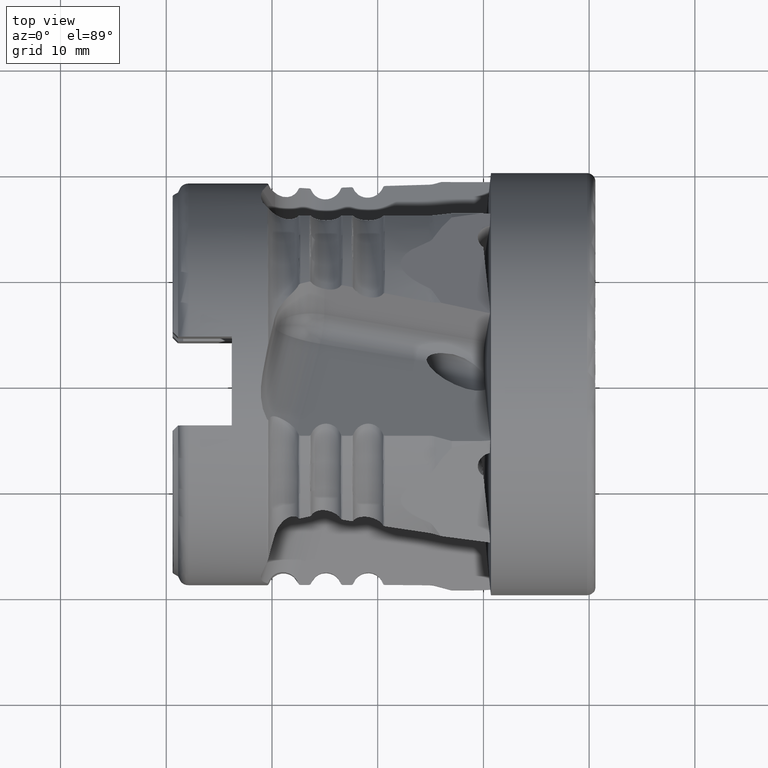
[diagram: clean part render]
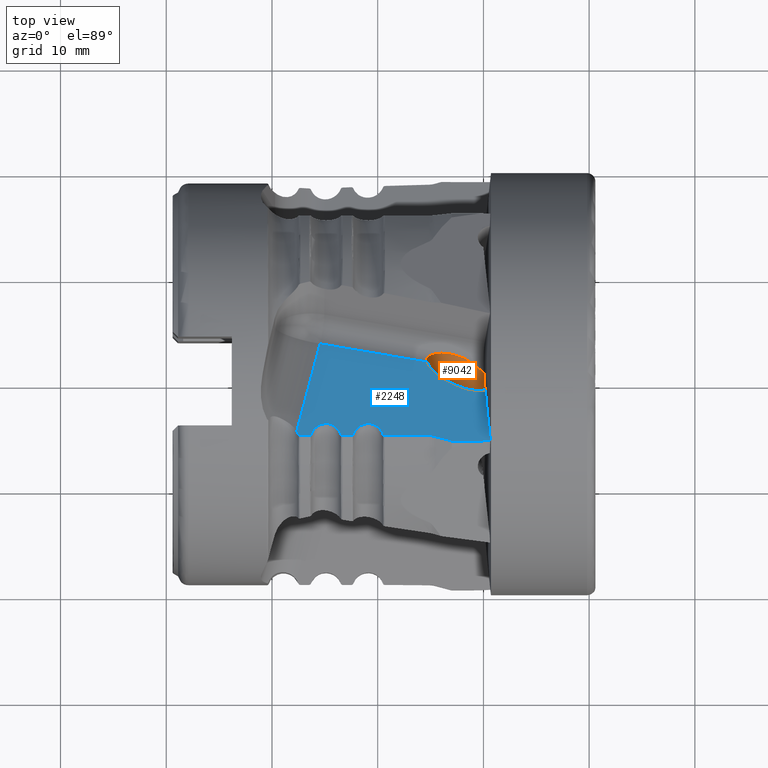
[diagram: same view with the hole feature highlighted: cylindrical wall and planar end face, labeled with their STEP entity ids]
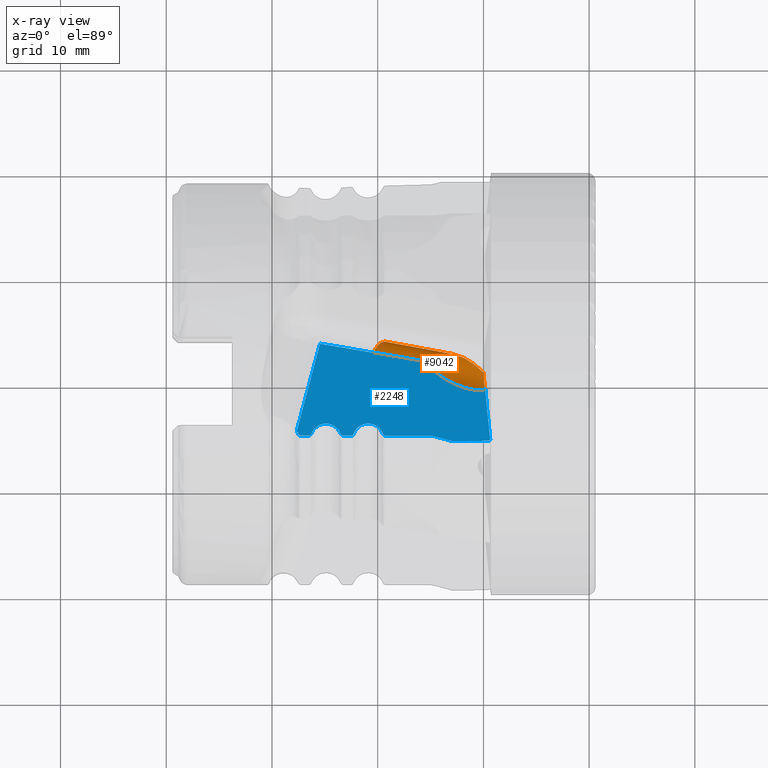
[diagram: x-ray of the same camera — body ghosted, the hole faces saturated]
A machine part, top view. The highlighted faces form one hole feature of diameter 3 mm: the cylindrical wall (entity #9042, orange) and its adjacent planar end face (entity #2248, blue) — they share a circular edge in the B-rep.
The next image is the same camera in x-ray (body ghosted, the hole faces saturated) — the bore reads through the body.
Wall:
#56 = VERTEX_POINT ( 'NONE', #1386 ) ;
#92 = CARTESIAN_POINT ( 'NONE',  ( -13.76933208266541400, 2.743760217047055900, 12.94930528677570300 ) ) ;
#139 = CARTESIAN_POINT ( 'NONE',  ( -15.35898908786278100, 1.943294868422755800, 13.11092619496852100 ) ) ;
#641 = EDGE_CURVE ( 'NONE', #8306, #9704, #6580, .T. ) ;
#792 = B_SPLINE_CURVE_WITH_KNOTS ( 'NONE', 3,
 ( #2803, #6832, #3643, #9428, #4441, #10295 ),
 .UNSPECIFIED., .F., .F.,
 ( 4, 2, 4 ),
 ( 0.01014295828333242200, 0.01049055047686821600, 0.01083814267040400900 ),
 .UNSPECIFIED. ) ;
#917 = CARTESIAN_POINT ( 'NONE',  ( -10.13550577281289300, 0.9966831452225244400, 13.79867986938194600 ) ) ;
#957 = CARTESIAN_POINT ( 'NONE',  ( -14.43310674602911100, 2.704815090084240500, 12.87911063201750900 ) ) ;
#1066 = DIRECTION ( 'NONE',  ( -0.7499999999999990000, 0.1499900169599142600, -0.6442072607572553200 ) ) ;
#1101 = CARTESIAN_POINT ( 'NONE',  ( -9.946684076369892900, 0.8069541416637764400, 13.93652605926345700 ) ) ;
#1103 = B_SPLINE_CURVE_WITH_KNOTS ( 'NONE', 3,
 ( #917, #5881, #1748, #7555, #2578, #8373, #3434, #9206, #4239, #10068, #5069, #92, #5913, #957, #6759, #1784, #7592, #2619, #8418, #3463, #9247, #4276, #10108, #5111, #139, #5946 ),
 .UNSPECIFIED., .F., .F.,
 ( 4, 2, 2, 2, 2, 2, 2, 2, 2, 2, 2, 2, 4 ),
 ( 0.01365394214359511500, 0.01445142073862909500, 0.01524889933366307300, 0.01604637792869705400, 0.01684385652373103200, 0.01764133511876500900, 0.01843881371379899000, 0.01883755301131597900, 0.01923629230883296800, 0.01943566195759146400, 0.01963503160634996400, 0.01983440125510846000, 0.02003377090386695600 ),
 .UNSPECIFIED. ) ;
#1238 =( BOUNDED_CURVE ( )  B_SPLINE_CURVE ( 3, ( #4471, #2923, #7879, #9539 ),
 .UNSPECIFIED., .F., .T. ) 
 B_SPLINE_CURVE_WITH_KNOTS ( ( 4, 4 ),
 ( 1.488834753162842300, 1.903271659866411400 ),
 .UNSPECIFIED. ) 
 CURVE ( )  GEOMETRIC_REPRESENTATION_ITEM ( )  RATIONAL_B_SPLINE_CURVE ( ( 1.000000000000000000, 0.9857379809340898200, 0.9857379809340898200, 1.000000000000000000 ) ) 
 REPRESENTATION_ITEM ( '' )  );
#1386 = CARTESIAN_POINT ( 'NONE',  ( -20.05716614495094100, 1.076282563064043400, 8.078620912287211900 ) ) ;
#1550 = CARTESIAN_POINT ( 'NONE',  ( -10.06844378393597800, 0.9332974584169557700, 13.84473226651302200 ) ) ;
#1553 = CARTESIAN_POINT ( 'NONE',  ( -9.822566937132366500, -0.7585513583927039300, 15.07393238288075700 ) ) ;
#1570 = ORIENTED_EDGE ( 'NONE', *, *, #7988, .F. ) ;
#1590 = FACE_OUTER_BOUND ( 'NONE', #4062, .T. ) ;
#1592 = DIRECTION ( 'NONE',  ( 0.7499999999999988900, -0.1499900169599142400, 0.6442072607572552100 ) ) ;
#1748 = CARTESIAN_POINT ( 'NONE',  ( -10.48524271920705100, 1.327420381469053100, 13.58272469696946400 ) ) ;
#1784 = CARTESIAN_POINT ( 'NONE',  ( -14.82488567207405900, 2.615929764949444200, 12.85495076458290200 ) ) ;
#1893 = CARTESIAN_POINT ( 'NONE',  ( 3.018772287385654600, -2.085747420995885300, 27.04576702990113500 ) ) ;
#2578 = CARTESIAN_POINT ( 'NONE',  ( -11.07865255320870700, 1.816123828541317000, 13.35858702854985900 ) ) ;
#2619 = CARTESIAN_POINT ( 'NONE',  ( -15.12656420888831300, 2.471325522373423000, 12.86721882264815200 ) ) ;
#2803 = CARTESIAN_POINT ( 'NONE',  ( -19.39999999999999100, 0.8687640906267007900, 8.103563966233471300 ) ) ;
#2923 = CARTESIAN_POINT ( 'NONE',  ( -19.40000000000000200, 0.8992824463543847000, 7.557094457244528700 ) ) ;
#3434 = CARTESIAN_POINT ( 'NONE',  ( -11.74164571269776200, 2.222989258383444500, 13.21709402708146700 ) ) ;
#3463 = CARTESIAN_POINT ( 'NONE',  ( -15.27632432101161400, 2.340839598102385300, 12.90279209871862100 ) ) ;
#3551 = FACE_OUTER_BOUND ( 'NONE', #7094, .T. ) ;
#3643 = CARTESIAN_POINT ( 'NONE',  ( -19.62338871953976500, 0.9233349908782416700, 8.097602501896650700 ) ) ;
#3711 = CARTESIAN_POINT ( 'NONE',  ( -19.39999999999999100, 0.8687640906267007900, 8.103563966233471300 ) ) ;
#4062 = EDGE_LOOP ( 'NONE', ( #5993, #8505, #1570 ) ) ;
#4133 = CARTESIAN_POINT ( 'NONE',  ( -9.935248352739813900, 0.1375915794516262800, 14.06454610670570200 ) ) ;
#4166 = EDGE_CURVE ( 'NONE', #4798, #8306, #1103, .T. ) ;
#4239 = CARTESIAN_POINT ( 'NONE',  ( -12.47587983340676000, 2.521453638687638500, 13.11090313414332300 ) ) ;
#4276 = CARTESIAN_POINT ( 'NONE',  ( -15.36538344870829300, 2.174564006928695600, 12.97325857271086800 ) ) ;
#4441 = CARTESIAN_POINT ( 'NONE',  ( -19.95053484058670500, 1.031957263990702000, 8.084526195752449200 ) ) ;
#4471 = CARTESIAN_POINT ( 'NONE',  ( -19.39999999999999900, 0.9788183572438087200, 7.290841423430443100 ) ) ;
#4721 = VERTEX_POINT ( 'NONE', #1101 ) ;
#4777 = ORIENTED_EDGE ( 'NONE', *, *, #4166, .T. ) ;
#4798 = VERTEX_POINT ( 'NONE', #8667 ) ;
#4824 = EDGE_CURVE ( 'NONE', #5738, #7269, #1238, .T. ) ;
#4956 = CARTESIAN_POINT ( 'NONE',  ( -9.889031247807544400, -0.4076579538250946800, 14.48287315077819800 ) ) ;
#5069 = CARTESIAN_POINT ( 'NONE',  ( -13.24411423564384200, 2.696557338477206600, 13.01335378516633400 ) ) ;
#5111 = CARTESIAN_POINT ( 'NONE',  ( -15.37240148174592800, 1.998148602455304300, 13.07420584584454200 ) ) ;
#5612 = CARTESIAN_POINT ( 'NONE',  ( -11.46751273770930300, -1.394058164067389500, 15.53565510404024200 ) ) ;
#5678 = CARTESIAN_POINT ( 'NONE',  ( -9.946684076369892900, 0.8069541416637764400, 13.93652605926345700 ) ) ;
#5738 = VERTEX_POINT ( 'NONE', #8181 ) ;
#5774 = B_SPLINE_CURVE_WITH_KNOTS ( 'NONE', 3,
 ( #8275, #8244, #9100, #4133, #9959, #4956, #10822, #5814 ),
 .UNSPECIFIED., .F., .F.,
 ( 4, 2, 2, 4 ),
 ( 0.001741882650136000500, 0.002250506159358555200, 0.002759129668581109700, 0.003776376687026222900 ),
 .UNSPECIFIED. ) ;
#5814 = CARTESIAN_POINT ( 'NONE',  ( -9.822566937132366500, -0.7585513583927039300, 15.07393238288075700 ) ) ;
#5881 = CARTESIAN_POINT ( 'NONE',  ( -10.30691408852787200, 1.158694949491064600, 13.68097140354197300 ) ) ;
#5913 = CARTESIAN_POINT ( 'NONE',  ( -14.03735069784414300, 2.746500323699302200, 12.91711123116701800 ) ) ;
#5946 = CARTESIAN_POINT ( 'NONE',  ( -15.33891227194169100, 1.891470660600391000, 13.14857868593153300 ) ) ;
#5993 = ORIENTED_EDGE ( 'NONE', *, *, #4824, .T. ) ;
#6173 = AXIS2_PLACEMENT_3D ( 'NONE', #1893, #1066, #6862 ) ;
#6473 = EDGE_CURVE ( 'NONE', #4721, #9704, #5774, .T. ) ;
#6490 = AXIS2_PLACEMENT_3D ( 'NONE', #6563, #1592, #7391 ) ;
#6529 = CARTESIAN_POINT ( 'NONE',  ( -15.33891227194169100, 1.891470660600391000, 13.14857868593153300 ) ) ;
#6563 = CARTESIAN_POINT ( 'NONE',  ( -19.48122771261431700, 2.413953087801541800, 7.719549207183475500 ) ) ;
#6580 =( BOUNDED_CURVE ( )  B_SPLINE_CURVE ( 3, ( #6529, #10700, #5612, #1553 ),
 .UNSPECIFIED., .F., .F. ) 
 B_SPLINE_CURVE_WITH_KNOTS ( ( 4, 4 ),
 ( 0.4924056675228997700, 2.889137602011643900 ),
 .UNSPECIFIED. ) 
 CURVE ( )  GEOMETRIC_REPRESENTATION_ITEM ( )  RATIONAL_B_SPLINE_CURVE ( ( 1.000000000000000000, 0.5759201682906727200, 0.5759201682906727200, 1.000000000000000000 ) ) 
 REPRESENTATION_ITEM ( '' )  );
#6759 = CARTESIAN_POINT ( 'NONE',  ( -14.56502147440819300, 2.683191117585043800, 12.86808368332849300 ) ) ;
#6832 = CARTESIAN_POINT ( 'NONE',  ( -19.51242930960424000, 0.8935637872691437600, 8.100905248909693800 ) ) ;
#6862 = DIRECTION ( 'NONE',  ( -0.6515782322083005800, 0.0000000000000000000, 0.7585814440864646600 ) ) ;
#7094 = EDGE_LOOP ( 'NONE', ( #10763, #7361, #4777, #8278 ) ) ;
#7269 = VERTEX_POINT ( 'NONE', #3711 ) ;
#7356 = CARTESIAN_POINT ( 'NONE',  ( -10.13550577281289300, 0.9966831452225244400, 13.79867986938194600 ) ) ;
#7361 = ORIENTED_EDGE ( 'NONE', *, *, #10596, .T. ) ;
#7391 = DIRECTION ( 'NONE',  ( -0.5547001962252301500, -0.6731428282939947400, 0.4890668921773917400 ) ) ;
#7555 = CARTESIAN_POINT ( 'NONE',  ( -10.87193899299137100, 1.657261715118856200, 13.42114005583049500 ) ) ;
#7592 = CARTESIAN_POINT ( 'NONE',  ( -14.95324655489945300, 2.570577214572000700, 12.85247539906608700 ) ) ;
#7692 = CYLINDRICAL_SURFACE ( 'NONE', #6173, 1.500000000000002000 ) ;
#7879 = CARTESIAN_POINT ( 'NONE',  ( -19.40000000000000200, 0.8620669223017623000, 7.831921560904430800 ) ) ;
#7988 = EDGE_CURVE ( 'NONE', #5738, #56, #9396, .T. ) ;
#8181 = CARTESIAN_POINT ( 'NONE',  ( -19.39999999999999900, 0.9788183572438087200, 7.290841423430443100 ) ) ;
#8244 = CARTESIAN_POINT ( 'NONE',  ( -9.949752525755124900, 0.6366348442051754700, 13.91832732421155500 ) ) ;
#8275 = CARTESIAN_POINT ( 'NONE',  ( -9.946684076369892900, 0.8069541416637764400, 13.93652605926345700 ) ) ;
#8278 = ORIENTED_EDGE ( 'NONE', *, *, #641, .T. ) ;
#8306 = VERTEX_POINT ( 'NONE', #10617 ) ;
#8373 = CARTESIAN_POINT ( 'NONE',  ( -11.51281327318955200, 2.098225358529350900, 13.25702601351750500 ) ) ;
#8418 = CARTESIAN_POINT ( 'NONE',  ( -15.18195883571895900, 2.432140590925866400, 12.87551203310055900 ) ) ;
#8505 = ORIENTED_EDGE ( 'NONE', *, *, #9077, .T. ) ;
#8667 = CARTESIAN_POINT ( 'NONE',  ( -10.13550577281289300, 0.9966831452225244400, 13.79867986938194600 ) ) ;
#8971 = CARTESIAN_POINT ( 'NONE',  ( -10.00544803547198000, 0.8699990090879518000, 13.89072128190733400 ) ) ;
#9042 = ADVANCED_FACE ( 'NONE', ( #3551, #1590 ), #7692, .F. ) ;
#9077 = EDGE_CURVE ( 'NONE', #7269, #56, #792, .T. ) ;
#9100 = CARTESIAN_POINT ( 'NONE',  ( -9.947618570723191700, 0.4615382974425822900, 13.94465598541669100 ) ) ;
#9206 = CARTESIAN_POINT ( 'NONE',  ( -12.22274224291677100, 2.434573361276207500, 13.14411307452176900 ) ) ;
#9247 = CARTESIAN_POINT ( 'NONE',  ( -15.31563926350038200, 2.287574993297279800, 12.92234403118818500 ) ) ;
#9396 = CIRCLE ( 'NONE', #6490, 1.500000000000002400 ) ;
#9428 = CARTESIAN_POINT ( 'NONE',  ( -19.84244173847969600, 0.9925308149810019300, 8.089412609418321400 ) ) ;
#9539 = CARTESIAN_POINT ( 'NONE',  ( -19.39999999999999100, 0.8687640906267007900, 8.103563966233471300 ) ) ;
#9704 = VERTEX_POINT ( 'NONE', #10576 ) ;
#9959 = CARTESIAN_POINT ( 'NONE',  ( -9.925382444820403500, -0.009277286303699946300, 14.15495330403697100 ) ) ;
#10068 = CARTESIAN_POINT ( 'NONE',  ( -12.98549481225816400, 2.651716882264991200, 13.04567717933476900 ) ) ;
#10108 = CARTESIAN_POINT ( 'NONE',  ( -15.37610167752155600, 2.114196568971077600, 13.00497278558824400 ) ) ;
#10295 = CARTESIAN_POINT ( 'NONE',  ( -20.05716614495094100, 1.076282563064043400, 8.078620912287211900 ) ) ;
#10352 =( BOUNDED_CURVE ( )  B_SPLINE_CURVE ( 3, ( #5678, #8971, #1550, #7356 ),
 .UNSPECIFIED., .F., .T. ) 
 B_SPLINE_CURVE_WITH_KNOTS ( ( 4, 4 ),
 ( 4.032597644442301300, 4.135135718307969600 ),
 .UNSPECIFIED. ) 
 CURVE ( )  GEOMETRIC_REPRESENTATION_ITEM ( )  RATIONAL_B_SPLINE_CURVE ( ( 1.000000000000000000, 0.9991240205195849300, 0.9991240205195849300, 1.000000000000000000 ) ) 
 REPRESENTATION_ITEM ( '' )  );
#10576 = CARTESIAN_POINT ( 'NONE',  ( -9.822566937132366500, -0.7585513583927039300, 15.07393238288075700 ) ) ;
#10596 = EDGE_CURVE ( 'NONE', #4721, #4798, #10352, .T. ) ;
#10617 = CARTESIAN_POINT ( 'NONE',  ( -15.33891227194169100, 1.891470660600391000, 13.14857868593153300 ) ) ;
#10700 = CARTESIAN_POINT ( 'NONE',  ( -14.66028472158886800, 0.1397319714985128500, 14.42129134151652700 ) ) ;
#10763 = ORIENTED_EDGE ( 'NONE', *, *, #6473, .F. ) ;
#10822 = CARTESIAN_POINT ( 'NONE',  ( -9.857108265226193200, -0.6083493174940592900, 14.76574395404637500 ) ) ;
End face:
#11 = DIRECTION ( 'NONE',  ( 0.0000000000000000000, 0.8090169943749548900, -0.5877852522924628100 ) ) ;
#17 = VERTEX_POINT ( 'NONE', #285 ) ;
#31 = CARTESIAN_POINT ( 'NONE',  ( -22.19102405345588000, -4.784408215598658900, 17.99888860130279200 ) ) ;
#49 = CARTESIAN_POINT ( 'NONE',  ( -23.35451523133686900, -5.174007102098048700, 18.28194876120812400 ) ) ;
#72 = CARTESIAN_POINT ( 'NONE',  ( -19.87822063762322200, -4.435949268947919000, 17.74571835729708300 ) ) ;
#125 = VERTEX_POINT ( 'NONE', #5991 ) ;
#158 = ORIENTED_EDGE ( 'NONE', *, *, #8380, .F. ) ;
#233 = VERTEX_POINT ( 'NONE', #2503 ) ;
#274 = ORIENTED_EDGE ( 'NONE', *, *, #8820, .T. ) ;
#285 = CARTESIAN_POINT ( 'NONE',  ( -14.61169230875398200, -5.244084350282169500, 18.33286286225948600 ) ) ;
#293 = VECTOR ( 'NONE', #3973, 1000.000000000000000 ) ;
#441 = CARTESIAN_POINT ( 'NONE',  ( -22.25552986489656200, -4.909114325005104400, 18.08949289328866100 ) ) ;
#501 = B_SPLINE_CURVE_WITH_KNOTS ( 'NONE', 3,
 ( #2080, #441, #31, #5862, #890, #6692, #1729, #7532, #2553, #8356, #3413, #9184, #4214, #10049, #5041, #72, #5894, #936, #6735, #1764 ),
 .UNSPECIFIED., .F., .F.,
 ( 4, 2, 2, 2, 2, 2, 2, 2, 2, 4 ),
 ( 6.959569068461384200E-007, 0.0005008961313655264400, 0.001001096305824206600, 0.001501296480282886900, 0.002001496654741567100, 0.002251596741970907300, 0.002501696829200247800, 0.003001897003658925900, 0.003502097178117604500, 0.004002297352576283400 ),
 .UNSPECIFIED. ) ;
#555 = CARTESIAN_POINT ( 'NONE',  ( -14.61169230875398200, -5.244084350282169500, 18.33286286225948600 ) ) ;
#586 = CARTESIAN_POINT ( 'NONE',  ( -13.00000000000000000, -5.684704993401148000, 18.65299249820251100 ) ) ;
#641 = EDGE_CURVE ( 'NONE', #8306, #9704, #6580, .T. ) ;
#646 = VECTOR ( 'NONE', #7300, 1000.000000000000100 ) ;
#650 = VERTEX_POINT ( 'NONE', #2520 ) ;
#700 = CARTESIAN_POINT ( 'NONE',  ( -26.02605945962821800, -4.549494149008636700, 17.82821354149845000 ) ) ;
#726 = CARTESIAN_POINT ( 'NONE',  ( -23.77759026163861500, -4.544873131719247900, 17.82485617591507000 ) ) ;
#832 = CARTESIAN_POINT ( 'NONE',  ( -27.49653173053729600, -5.040501295004273400, 18.18495111461880500 ) ) ;
#851 = CARTESIAN_POINT ( 'NONE',  ( -19.39713945302074900, -5.157818757193336300, 18.27018724017683500 ) ) ;
#864 = CARTESIAN_POINT ( 'NONE',  ( -26.49059737205868000, -5.174007102098054900, 18.28194876120811700 ) ) ;
#890 = CARTESIAN_POINT ( 'NONE',  ( -21.92372490912033500, -4.437963227946693400, 17.74718158415935300 ) ) ;
#936 = CARTESIAN_POINT ( 'NONE',  ( -19.60946505668495400, -4.783149460293236300, 17.99797406204104900 ) ) ;
#1224 = CARTESIAN_POINT ( 'NONE',  ( -22.49059737205868000, -5.174007102098049600, 18.28194876120812000 ) ) ;
#1233 = EDGE_LOOP ( 'NONE', ( #8143, #4792, #8331, #158, #6859, #5655, #9991, #3466, #7135, #274, #1747, #10634, #8565, #3802, #3238, #5830, #5432, #6610, #3427 ) ) ;
#1257 = EDGE_CURVE ( 'NONE', #2677, #9704, #2302, .T. ) ;
#1273 = VERTEX_POINT ( 'NONE', #5456 ) ;
#1309 = EDGE_CURVE ( 'NONE', #8137, #9963, #9017, .T. ) ;
#1495 = CARTESIAN_POINT ( 'NONE',  ( -26.25552986489657700, -4.909114325005158500, 18.08949289328869300 ) ) ;
#1506 = EDGE_CURVE ( 'NONE', #3560, #2714, #3047, .T. ) ;
#1534 = CARTESIAN_POINT ( 'NONE',  ( -25.68517630463854600, -4.246992198373523500, 17.60843300955746200 ) ) ;
#1552 = B_SPLINE_CURVE_WITH_KNOTS ( 'NONE', 3,
 ( #864, #8333, #3381, #9160, #4194, #10021 ),
 .UNSPECIFIED., .F., .F.,
 ( 4, 2, 4 ),
 ( 9.457544191880492000E-006, 0.0001425470677172205600, 0.0002756365912425606600 ),
 .UNSPECIFIED. ) ;
#1553 = CARTESIAN_POINT ( 'NONE',  ( -9.822566937132366500, -0.7585513583927039300, 15.07393238288075700 ) ) ;
#1558 = DIRECTION ( 'NONE',  ( 1.000000000000000000, -0.0000000000000000000, -0.0000000000000000000 ) ) ;
#1573 = CARTESIAN_POINT ( 'NONE',  ( -23.54454676169948300, -4.908904311001322200, 18.08934030918343100 ) ) ;
#1575 = CARTESIAN_POINT ( 'NONE',  ( -27.46192273519679000, -5.107537358864636400, 18.23365566592344700 ) ) ;
#1684 = CARTESIAN_POINT ( 'NONE',  ( -19.30940262794131000, -5.174007102098005200, 18.28194876120812800 ) ) ;
#1729 = CARTESIAN_POINT ( 'NONE',  ( -21.54550185538048600, -4.165104764321525500, 17.54893830620947200 ) ) ;
#1747 = ORIENTED_EDGE ( 'NONE', *, *, #1309, .T. ) ;
#1764 = CARTESIAN_POINT ( 'NONE',  ( -19.49653173053642900, -5.040501295004462500, 18.18495111461895800 ) ) ;
#1867 = CARTESIAN_POINT ( 'NONE',  ( -23.46211717703122800, -5.107436848638022800, 18.23358264096931300 ) ) ;
#1869 = LINE ( 'NONE', #10767, #8222 ) ;
#1937 = CARTESIAN_POINT ( 'NONE',  ( -23.48400527702163400, -5.074833116997754500, 18.20989464336098600 ) ) ;
#2080 = CARTESIAN_POINT ( 'NONE',  ( -22.30346826946356100, -5.040501295004466100, 18.18495111461895400 ) ) ;
#2192 = CARTESIAN_POINT ( 'NONE',  ( -15.12933039895903200, -5.174007102098035400, 18.28194876120812400 ) ) ;
#2248 = ADVANCED_FACE ( 'NONE', ( #9263 ), #7473, .F. ) ;
#2302 = B_SPLINE_CURVE_WITH_KNOTS ( 'NONE', 3,
 ( #4773, #7137, #6062, #7666 ),
 .UNSPECIFIED., .F., .F.,
 ( 4, 4 ),
 ( 0.008658927041615744100, 0.01469242584771231700 ),
 .UNSPECIFIED. ) ;
#2365 = CARTESIAN_POINT ( 'NONE',  ( -25.24024630642975700, -4.051618719775291300, 17.46648586851150900 ) ) ;
#2372 = VERTEX_POINT ( 'NONE', #10249 ) ;
#2397 = CARTESIAN_POINT ( 'NONE',  ( -27.35421412187021400, -5.174007102098048700, 18.28194876120811000 ) ) ;
#2407 = AXIS2_PLACEMENT_3D ( 'NONE', #2494, #4973, #11 ) ;
#2459 = EDGE_CURVE ( 'NONE', #2714, #17, #7674, .T. ) ;
#2494 = CARTESIAN_POINT ( 'NONE',  ( -29.31173178399242100, 4.294262842245310600, 11.40284798000788800 ) ) ;
#2503 = CARTESIAN_POINT ( 'NONE',  ( -27.49653173053729600, -5.040501295004273400, 18.18495111461880500 ) ) ;
#2520 = CARTESIAN_POINT ( 'NONE',  ( -19.49653173053642900, -5.040501295004462500, 18.18495111461895800 ) ) ;
#2553 = CARTESIAN_POINT ( 'NONE',  ( -21.07160468520989800, -4.019642865724483400, 17.44325405067431600 ) ) ;
#2677 = VERTEX_POINT ( 'NONE', #6484 ) ;
#2714 = VERTEX_POINT ( 'NONE', #8172 ) ;
#2771 = VERTEX_POINT ( 'NONE', #4140 ) ;
#2776 = CARTESIAN_POINT ( 'NONE',  ( -23.49653173053644300, -5.040501295004434100, 18.18495111461892900 ) ) ;
#2781 = EDGE_CURVE ( 'NONE', #650, #3560, #7406, .T. ) ;
#2902 = CARTESIAN_POINT ( 'NONE',  ( -22.44593014509044700, -5.174007102098044300, 18.28194876120811700 ) ) ;
#3046 = CARTESIAN_POINT ( 'NONE',  ( -14.77951588340365100, -5.197894169648194800, 18.29930373165265000 ) ) ;
#3047 = LINE ( 'NONE', #5683, #4959 ) ;
#3160 = CARTESIAN_POINT ( 'NONE',  ( -27.30940262794135600, -5.174007102098005200, 18.28194876120812800 ) ) ;
#3197 = EDGE_CURVE ( 'NONE', #17, #9838, #8519, .T. ) ;
#3216 = CARTESIAN_POINT ( 'NONE',  ( -24.81961662171386300, -4.018992057001078400, 17.44278121045916300 ) ) ;
#3236 = EDGE_CURVE ( 'NONE', #2771, #233, #4336, .T. ) ;
#3238 = ORIENTED_EDGE ( 'NONE', *, *, #2781, .T. ) ;
#3243 = EDGE_CURVE ( 'NONE', #9963, #8894, #1869, .T. ) ;
#3288 = EDGE_CURVE ( 'NONE', #2372, #1273, #1552, .T. ) ;
#3308 = VECTOR ( 'NONE', #4493, 1000.000000000000000 ) ;
#3381 = CARTESIAN_POINT ( 'NONE',  ( -26.40259743052051200, -5.157592447396594600, 18.27002281648498500 ) ) ;
#3413 = CARTESIAN_POINT ( 'NONE',  ( -20.73405273178916600, -4.026583027703649600, 17.44829637350342500 ) ) ;
#3427 = ORIENTED_EDGE ( 'NONE', *, *, #3449, .T. ) ;
#3449 = EDGE_CURVE ( 'NONE', #9838, #9906, #7452, .T. ) ;
#3466 = ORIENTED_EDGE ( 'NONE', *, *, #10566, .T. ) ;
#3560 = VERTEX_POINT ( 'NONE', #7139 ) ;
#3650 = VERTEX_POINT ( 'NONE', #3160 ) ;
#3651 = LINE ( 'NONE', #6503, #646 ) ;
#3720 = CARTESIAN_POINT ( 'NONE',  ( -22.40259743052052200, -5.157592447396592000, 18.27002281648498900 ) ) ;
#3749 = CARTESIAN_POINT ( 'NONE',  ( -23.30940262794131000, -5.174007102098005200, 18.28194876120812800 ) ) ;
#3802 = ORIENTED_EDGE ( 'NONE', *, *, #6095, .T. ) ;
#3973 = DIRECTION ( 'NONE',  ( 1.000000000000000000, -0.0000000000000000000, -0.0000000000000000000 ) ) ;
#4033 = CARTESIAN_POINT ( 'NONE',  ( -24.56959015554388200, -4.056144564603435800, 17.46977408725430800 ) ) ;
#4140 = CARTESIAN_POINT ( 'NONE',  ( -27.65313956114036700, -4.724084538506210700, 17.95506088444945200 ) ) ;
#4169 = B_SPLINE_CURVE_WITH_KNOTS ( 'NONE', 3,
 ( #1224, #2902, #3720, #9522, #4529, #10389 ),
 .UNSPECIFIED., .F., .F.,
 ( 4, 2, 4 ),
 ( 9.457544191890830900E-006, 0.0001425470677172108300, 0.0002756365912425307900 ),
 .UNSPECIFIED. ) ;
#4194 = CARTESIAN_POINT ( 'NONE',  ( -26.31610287765312300, -5.075129541441719500, 18.21011000832586300 ) ) ;
#4214 = CARTESIAN_POINT ( 'NONE',  ( -20.48979650170335300, -4.077974555468994600, 17.48563450400412100 ) ) ;
#4286 = LINE ( 'NONE', #5597, #10696 ) ;
#4336 = B_SPLINE_CURVE_WITH_KNOTS ( 'NONE', 3,
 ( #9946, #5766, #5799, #832 ),
 .UNSPECIFIED., .F., .F.,
 ( 4, 4 ),
 ( 0.004767170649669688100, 0.005185469761147165100 ),
 .UNSPECIFIED. ) ;
#4436 = LINE ( 'NONE', #9791, #293 ) ;
#4493 = DIRECTION ( 'NONE',  ( 1.000000000000000000, -0.0000000000000000000, -0.0000000000000000000 ) ) ;
#4529 = CARTESIAN_POINT ( 'NONE',  ( -22.31610287765313700, -5.075129541441736300, 18.21011000832587700 ) ) ;
#4773 = CARTESIAN_POINT ( 'NONE',  ( -9.346189801495956600, -5.625993918238350500, 18.61033640523180600 ) ) ;
#4792 = ORIENTED_EDGE ( 'NONE', *, *, #1257, .T. ) ;
#4844 = CARTESIAN_POINT ( 'NONE',  ( -24.25730871694763400, -4.163398419105000400, 17.54769857384220100 ) ) ;
#4959 = VECTOR ( 'NONE', #1558, 1000.000000000000000 ) ;
#4968 = EDGE_CURVE ( 'NONE', #2677, #9906, #3651, .T. ) ;
#4973 = DIRECTION ( 'NONE',  ( 1.517883041479706200E-015, -0.5877852522924628100, -0.8090169943749548900 ) ) ;
#5000 = CARTESIAN_POINT ( 'NONE',  ( -22.30346826946356100, -5.040501295004466100, 18.18495111461895400 ) ) ;
#5041 = CARTESIAN_POINT ( 'NONE',  ( -20.11851680726042000, -4.244502954149613300, 17.60662446776621700 ) ) ;
#5432 = ORIENTED_EDGE ( 'NONE', *, *, #2459, .T. ) ;
#5456 = CARTESIAN_POINT ( 'NONE',  ( -26.30346826946354700, -5.040501295004439400, 18.18495111461892600 ) ) ;
#5499 = CARTESIAN_POINT ( 'NONE',  ( -14.95195270344651200, -5.174007102098025600, 18.28194876120811700 ) ) ;
#5557 = CARTESIAN_POINT ( 'NONE',  ( -13.53758768013479900, -5.538688691693844000, 18.54690544523007000 ) ) ;
#5597 = CARTESIAN_POINT ( 'NONE',  ( -27.94547007449177300, -5.836731221429165100, 18.76344601823705500 ) ) ;
#5612 = CARTESIAN_POINT ( 'NONE',  ( -11.46751273770930300, -1.394058164067389500, 15.53565510404024200 ) ) ;
#5636 = B_SPLINE_CURVE_WITH_KNOTS ( 'NONE', 3,
 ( #5701, #8167, #1575, #7378, #2397, #8210 ),
 .UNSPECIFIED., .F., .F.,
 ( 4, 2, 4 ),
 ( 0.0004750194126315292900, 0.0006084726686637608500, 0.0007419259246959923500 ),
 .UNSPECIFIED. ) ;
#5655 = ORIENTED_EDGE ( 'NONE', *, *, #3236, .T. ) ;
#5661 = CARTESIAN_POINT ( 'NONE',  ( -26.19102405345590500, -4.784408215598730000, 17.99888860130283100 ) ) ;
#5683 = CARTESIAN_POINT ( 'NONE',  ( -1.783391472208787500E-014, -5.174007102098005200, 18.28194876120812800 ) ) ;
#5698 = CARTESIAN_POINT ( 'NONE',  ( -23.87822063762324700, -4.435949268947905600, 17.74571835729706800 ) ) ;
#5701 = CARTESIAN_POINT ( 'NONE',  ( -27.49653173053729600, -5.040501295004273400, 18.18495111461880500 ) ) ;
#5766 = CARTESIAN_POINT ( 'NONE',  ( -27.58844607059203500, -4.825157185072528800, 18.02849446059793300 ) ) ;
#5799 = CARTESIAN_POINT ( 'NONE',  ( -27.53618891023192800, -4.931811055394472700, 18.10598303316319500 ) ) ;
#5820 = CARTESIAN_POINT ( 'NONE',  ( -19.46211717703122400, -5.107436848638021900, 18.23358264096932400 ) ) ;
#5830 = ORIENTED_EDGE ( 'NONE', *, *, #1506, .T. ) ;
#5862 = CARTESIAN_POINT ( 'NONE',  ( -22.02605945962823200, -4.549494149008635800, 17.82821354149846400 ) ) ;
#5894 = CARTESIAN_POINT ( 'NONE',  ( -19.77759026163866800, -4.544873131719156400, 17.82485617591500200 ) ) ;
#5991 = CARTESIAN_POINT ( 'NONE',  ( -25.45783023710121300, 3.631538722914208000, 11.88434523703682900 ) ) ;
#6007 = VECTOR ( 'NONE', #9818, 999.9999999999998900 ) ;
#6062 = CARTESIAN_POINT ( 'NONE',  ( -9.684601413365733400, -2.381950523322482900, 16.25340091613059500 ) ) ;
#6095 = EDGE_CURVE ( 'NONE', #6096, #650, #501, .T. ) ;
#6096 = VERTEX_POINT ( 'NONE', #5000 ) ;
#6185 = B_SPLINE_CURVE_WITH_KNOTS ( 'NONE', 3,
 ( #8099, #1495, #5661, #700, #6509, #1534, #7342, #2365, #8165, #3216, #8992, #4033, #9841, #4844, #10719, #5698, #726, #6547, #1573, #7376 ),
 .UNSPECIFIED., .F., .F.,
 ( 4, 2, 2, 2, 2, 2, 2, 2, 2, 4 ),
 ( 6.959569148815982100E-007, 0.0005008961313735948600, 0.001001096305832308000, 0.001501296480291021200, 0.002001496654749734600, 0.002251596741979096900, 0.002501696829208458300, 0.003001897003667180600, 0.003502097178125902500, 0.004002297352584624800 ),
 .UNSPECIFIED. ) ;
#6244 = EDGE_CURVE ( 'NONE', #8894, #6096, #4169, .T. ) ;
#6410 = EDGE_CURVE ( 'NONE', #125, #2771, #4286, .T. ) ;
#6432 = EDGE_CURVE ( 'NONE', #233, #3650, #5636, .T. ) ;
#6484 = CARTESIAN_POINT ( 'NONE',  ( -9.346189801495956600, -5.625993918238350500, 18.61033640523180600 ) ) ;
#6503 = CARTESIAN_POINT ( 'NONE',  ( 1.159006749068290300, -4.954073609446719900, 18.12215772546422300 ) ) ;
#6509 = CARTESIAN_POINT ( 'NONE',  ( -25.92372490912031300, -4.437963227946687200, 17.74718158415933900 ) ) ;
#6529 = CARTESIAN_POINT ( 'NONE',  ( -15.33891227194169100, 1.891470660600391000, 13.14857868593153300 ) ) ;
#6547 = CARTESIAN_POINT ( 'NONE',  ( -23.60946505668496100, -4.783149460293250500, 17.99797406204105600 ) ) ;
#6580 =( BOUNDED_CURVE ( )  B_SPLINE_CURVE ( 3, ( #6529, #10700, #5612, #1553 ),
 .UNSPECIFIED., .F., .F. ) 
 B_SPLINE_CURVE_WITH_KNOTS ( ( 4, 4 ),
 ( 0.4924056675228997700, 2.889137602011643900 ),
 .UNSPECIFIED. ) 
 CURVE ( )  GEOMETRIC_REPRESENTATION_ITEM ( )  RATIONAL_B_SPLINE_CURVE ( ( 1.000000000000000000, 0.5759201682906727200, 0.5759201682906727200, 1.000000000000000000 ) ) 
 REPRESENTATION_ITEM ( '' )  );
#6610 = ORIENTED_EDGE ( 'NONE', *, *, #3197, .T. ) ;
#6657 = CARTESIAN_POINT ( 'NONE',  ( -19.35451523133685100, -5.174007102098039800, 18.28194876120812000 ) ) ;
#6692 = CARTESIAN_POINT ( 'NONE',  ( -21.68517630463854600, -4.246992198373507500, 17.60843300955746600 ) ) ;
#6711 = CARTESIAN_POINT ( 'NONE',  ( -23.30940262794131000, -5.174007102098005200, 18.28194876120812800 ) ) ;
#6735 = CARTESIAN_POINT ( 'NONE',  ( -19.54454676169946500, -4.908904311001337300, 18.08934030918344900 ) ) ;
#6838 = CARTESIAN_POINT ( 'NONE',  ( -10.26411321623775000, -5.684704993401169300, 18.65299249820250800 ) ) ;
#6859 = ORIENTED_EDGE ( 'NONE', *, *, #6410, .T. ) ;
#7135 = ORIENTED_EDGE ( 'NONE', *, *, #3288, .T. ) ;
#7137 = CARTESIAN_POINT ( 'NONE',  ( -9.521133915136450900, -4.004225238092018900, 17.43205248851840100 ) ) ;
#7139 = CARTESIAN_POINT ( 'NONE',  ( -19.30940262794131000, -5.174007102098005200, 18.28194876120812800 ) ) ;
#7202 = CARTESIAN_POINT ( 'NONE',  ( -14.07483309087174700, -5.391844426902847200, 18.44021684186573400 ) ) ;
#7300 = DIRECTION ( 'NONE',  ( -0.9968893454005204300, -0.06376179575208665300, 0.04632565627587941600 ) ) ;
#7342 = CARTESIAN_POINT ( 'NONE',  ( -25.54550185538048300, -4.165104764321537100, 17.54893830620946800 ) ) ;
#7376 = CARTESIAN_POINT ( 'NONE',  ( -23.49653173053644300, -5.040501295004434100, 18.18495111461892900 ) ) ;
#7378 = CARTESIAN_POINT ( 'NONE',  ( -27.39764190357739800, -5.157479185486979000, 18.26994052689084600 ) ) ;
#7406 = B_SPLINE_CURVE_WITH_KNOTS ( 'NONE', 3,
 ( #9964, #10827, #5820, #851, #6657, #1684 ),
 .UNSPECIFIED., .F., .F.,
 ( 4, 2, 4 ),
 ( 4.471904682512609600E-005, 0.0001774255079895624100, 0.0003101319691539987600 ),
 .UNSPECIFIED. ) ;
#7452 = LINE ( 'NONE', #8650, #3308 ) ;
#7473 = PLANE ( 'NONE',  #2407 ) ;
#7480 = CARTESIAN_POINT ( 'NONE',  ( -22.49059737205868000, -5.174007102098049600, 18.28194876120812000 ) ) ;
#7532 = CARTESIAN_POINT ( 'NONE',  ( -21.24024630642977500, -4.051618719775280700, 17.46648586851151200 ) ) ;
#7666 = CARTESIAN_POINT ( 'NONE',  ( -9.822566937132366500, -0.7585513583927039300, 15.07393238288075700 ) ) ;
#7674 = B_SPLINE_CURVE_WITH_KNOTS ( 'NONE', 3,
 ( #2192, #5499, #3046, #8833 ),
 .UNSPECIFIED., .F., .F.,
 ( 4, 4 ),
 ( 1.972551169479620600E-007, 0.0005250327139312992100 ),
 .UNSPECIFIED. ) ;
#7833 = CARTESIAN_POINT ( 'NONE',  ( -23.49653173053644300, -5.040501295004434100, 18.18495111461892900 ) ) ;
#8099 = CARTESIAN_POINT ( 'NONE',  ( -26.30346826946354700, -5.040501295004439400, 18.18495111461892600 ) ) ;
#8137 = VERTEX_POINT ( 'NONE', #7833 ) ;
#8143 = ORIENTED_EDGE ( 'NONE', *, *, #4968, .F. ) ;
#8165 = CARTESIAN_POINT ( 'NONE',  ( -25.07160468520994800, -4.019642865724494900, 17.44325405067431600 ) ) ;
#8167 = CARTESIAN_POINT ( 'NONE',  ( -27.48396667553780800, -5.074938913841938500, 18.20997150926760700 ) ) ;
#8172 = CARTESIAN_POINT ( 'NONE',  ( -15.12933039895903200, -5.174007102098035400, 18.28194876120812400 ) ) ;
#8210 = CARTESIAN_POINT ( 'NONE',  ( -27.30940262794135600, -5.174007102098005200, 18.28194876120812800 ) ) ;
#8222 = VECTOR ( 'NONE', #10807, 1000.000000000000000 ) ;
#8306 = VERTEX_POINT ( 'NONE', #10617 ) ;
#8331 = ORIENTED_EDGE ( 'NONE', *, *, #641, .F. ) ;
#8333 = CARTESIAN_POINT ( 'NONE',  ( -26.44593014509043600, -5.174007102098054000, 18.28194876120811700 ) ) ;
#8356 = CARTESIAN_POINT ( 'NONE',  ( -20.81961662171388000, -4.018992057001069500, 17.44278121045916000 ) ) ;
#8380 = EDGE_CURVE ( 'NONE', #125, #8306, #8473, .T. ) ;
#8473 = LINE ( 'NONE', #10689, #6007 ) ;
#8519 = B_SPLINE_CURVE_WITH_KNOTS ( 'NONE', 3,
 ( #555, #7202, #5557, #586 ),
 .UNSPECIFIED., .F., .F.,
 ( 4, 4 ),
 ( 2.112566324397334300E-007, 0.001701440704134550600 ),
 .UNSPECIFIED. ) ;
#8565 = ORIENTED_EDGE ( 'NONE', *, *, #6244, .T. ) ;
#8650 = CARTESIAN_POINT ( 'NONE',  ( -1.783391472208787500E-014, -5.684704993401148000, 18.65299249820251100 ) ) ;
#8820 = EDGE_CURVE ( 'NONE', #1273, #8137, #6185, .T. ) ;
#8833 = CARTESIAN_POINT ( 'NONE',  ( -14.61169230875398200, -5.244084350282169500, 18.33286286225948600 ) ) ;
#8894 = VERTEX_POINT ( 'NONE', #7480 ) ;
#8992 = CARTESIAN_POINT ( 'NONE',  ( -24.73405273178914900, -4.026583027703669200, 17.44829637350343900 ) ) ;
#9017 = B_SPLINE_CURVE_WITH_KNOTS ( 'NONE', 3,
 ( #2776, #1937, #1867, #9168, #49, #6711 ),
 .UNSPECIFIED., .F., .F.,
 ( 4, 2, 4 ),
 ( 4.471904682321022900E-005, 0.0001774255079876689000, 0.0003101319691521275800 ),
 .UNSPECIFIED. ) ;
#9160 = CARTESIAN_POINT ( 'NONE',  ( -26.33828292080264800, -5.107769322513997100, 18.23382419737965400 ) ) ;
#9168 = CARTESIAN_POINT ( 'NONE',  ( -23.39713945302081700, -5.157818757193301600, 18.27018724017679900 ) ) ;
#9184 = CARTESIAN_POINT ( 'NONE',  ( -20.56959015554385700, -4.056144564603419800, 17.46977408725431100 ) ) ;
#9263 = FACE_OUTER_BOUND ( 'NONE', #1233, .T. ) ;
#9522 = CARTESIAN_POINT ( 'NONE',  ( -22.33828292080266200, -5.107769322514009500, 18.23382419737967600 ) ) ;
#9704 = VERTEX_POINT ( 'NONE', #10576 ) ;
#9791 = CARTESIAN_POINT ( 'NONE',  ( -1.783391472208787500E-014, -5.174007102098005200, 18.28194876120812800 ) ) ;
#9818 = DIRECTION ( 'NONE',  ( 0.9781476007338083500, -0.1682040912007876400, 0.1222074256418630700 ) ) ;
#9838 = VERTEX_POINT ( 'NONE', #10077 ) ;
#9841 = CARTESIAN_POINT ( 'NONE',  ( -24.48979650170335300, -4.077974555469005200, 17.48563450400411800 ) ) ;
#9906 = VERTEX_POINT ( 'NONE', #6838 ) ;
#9946 = CARTESIAN_POINT ( 'NONE',  ( -27.65313956114036700, -4.724084538506210700, 17.95506088444945200 ) ) ;
#9963 = VERTEX_POINT ( 'NONE', #3749 ) ;
#9964 = CARTESIAN_POINT ( 'NONE',  ( -19.49653173053642900, -5.040501295004462500, 18.18495111461895800 ) ) ;
#9991 = ORIENTED_EDGE ( 'NONE', *, *, #6432, .T. ) ;
#10021 = CARTESIAN_POINT ( 'NONE',  ( -26.30346826946354700, -5.040501295004439400, 18.18495111461892600 ) ) ;
#10049 = CARTESIAN_POINT ( 'NONE',  ( -20.25730871694775500, -4.163398419104937400, 17.54769857384215800 ) ) ;
#10077 = CARTESIAN_POINT ( 'NONE',  ( -13.00000000000000000, -5.684704993401148000, 18.65299249820251100 ) ) ;
#10249 = CARTESIAN_POINT ( 'NONE',  ( -26.49059737205868000, -5.174007102098054900, 18.28194876120811700 ) ) ;
#10389 = CARTESIAN_POINT ( 'NONE',  ( -22.30346826946356100, -5.040501295004466100, 18.18495111461895400 ) ) ;
#10566 = EDGE_CURVE ( 'NONE', #3650, #2372, #4436, .T. ) ;
#10576 = CARTESIAN_POINT ( 'NONE',  ( -9.822566937132366500, -0.7585513583927039300, 15.07393238288075700 ) ) ;
#10617 = CARTESIAN_POINT ( 'NONE',  ( -15.33891227194169100, 1.891470660600391000, 13.14857868593153300 ) ) ;
#10634 = ORIENTED_EDGE ( 'NONE', *, *, #3243, .T. ) ;
#10643 = DIRECTION ( 'NONE',  ( -0.2079116908177468800, -0.7913380320007392700, 0.5749407342765884300 ) ) ;
#10689 = CARTESIAN_POINT ( 'NONE',  ( -29.31173178399242100, 4.294262842245310600, 11.40284798000788800 ) ) ;
#10696 = VECTOR ( 'NONE', #10643, 1000.000000000000100 ) ;
#10700 = CARTESIAN_POINT ( 'NONE',  ( -14.66028472158886800, 0.1397319714985128500, 14.42129134151652700 ) ) ;
#10719 = CARTESIAN_POINT ( 'NONE',  ( -24.11851680726037400, -4.244502954149658600, 17.60662446776624200 ) ) ;
#10767 = CARTESIAN_POINT ( 'NONE',  ( -1.783391472208787500E-014, -5.174007102098005200, 18.28194876120812800 ) ) ;
#10807 = DIRECTION ( 'NONE',  ( 1.000000000000000000, -0.0000000000000000000, -0.0000000000000000000 ) ) ;
#10827 = CARTESIAN_POINT ( 'NONE',  ( -19.48400527702162700, -5.074833116997769600, 18.20989464336100400 ) ) ;